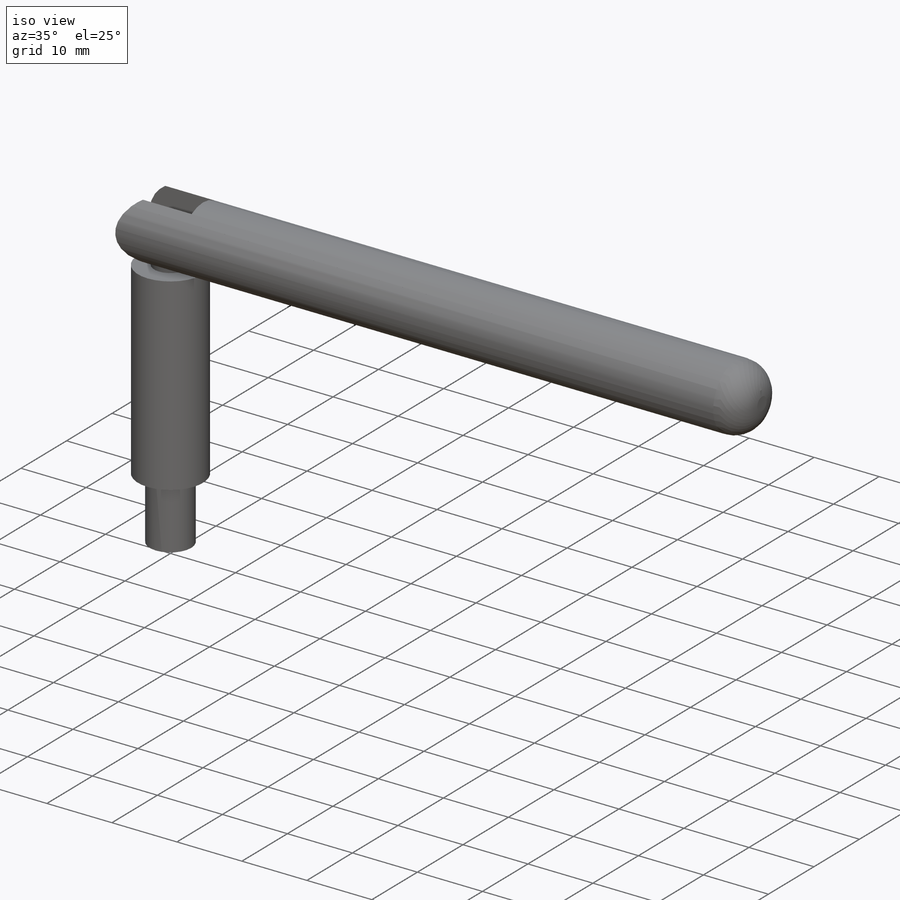
[diagram: iso view]
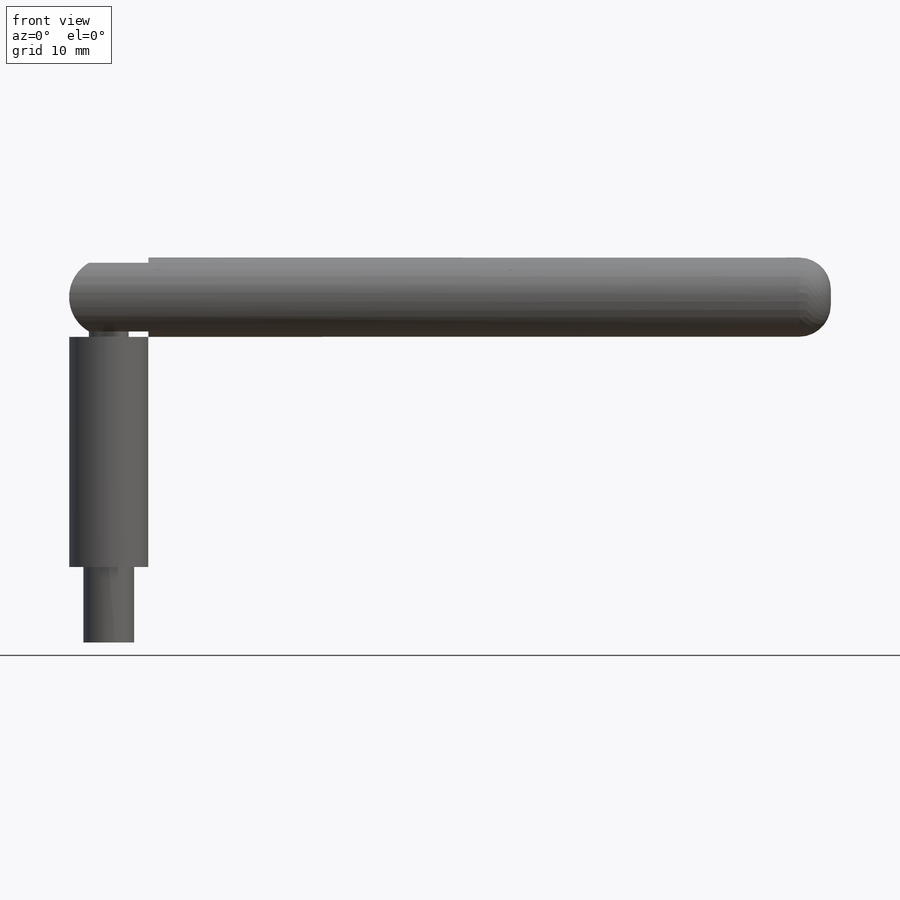
[diagram: front view]
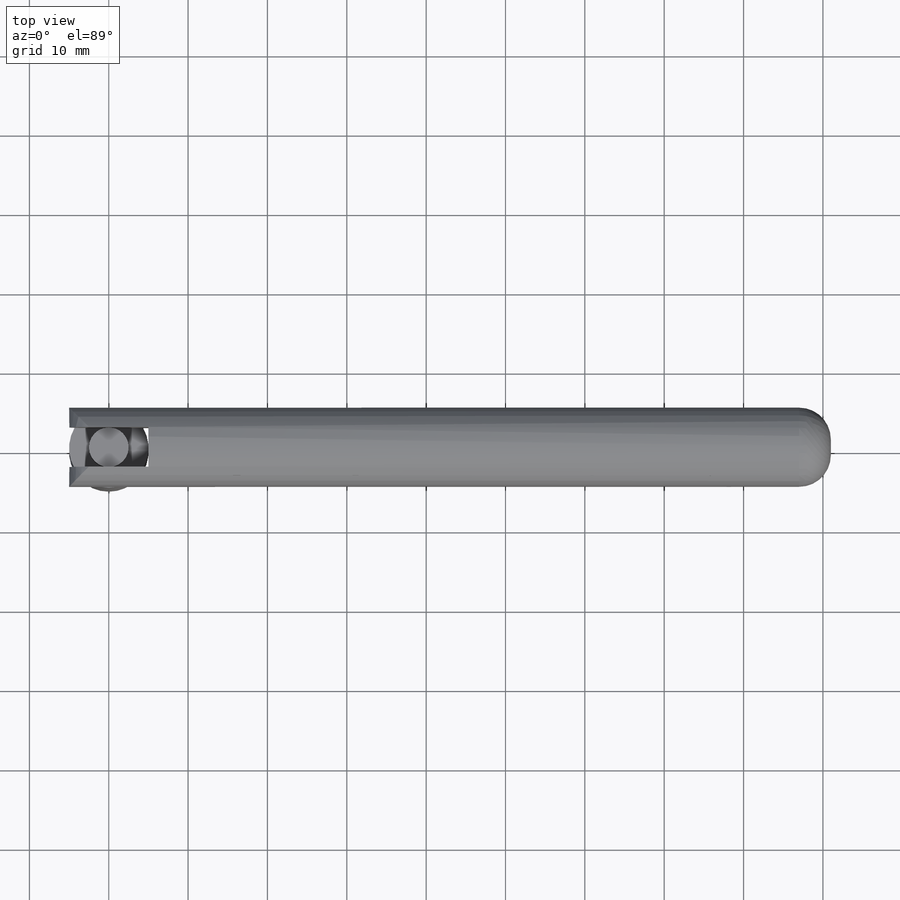
[diagram: top view]
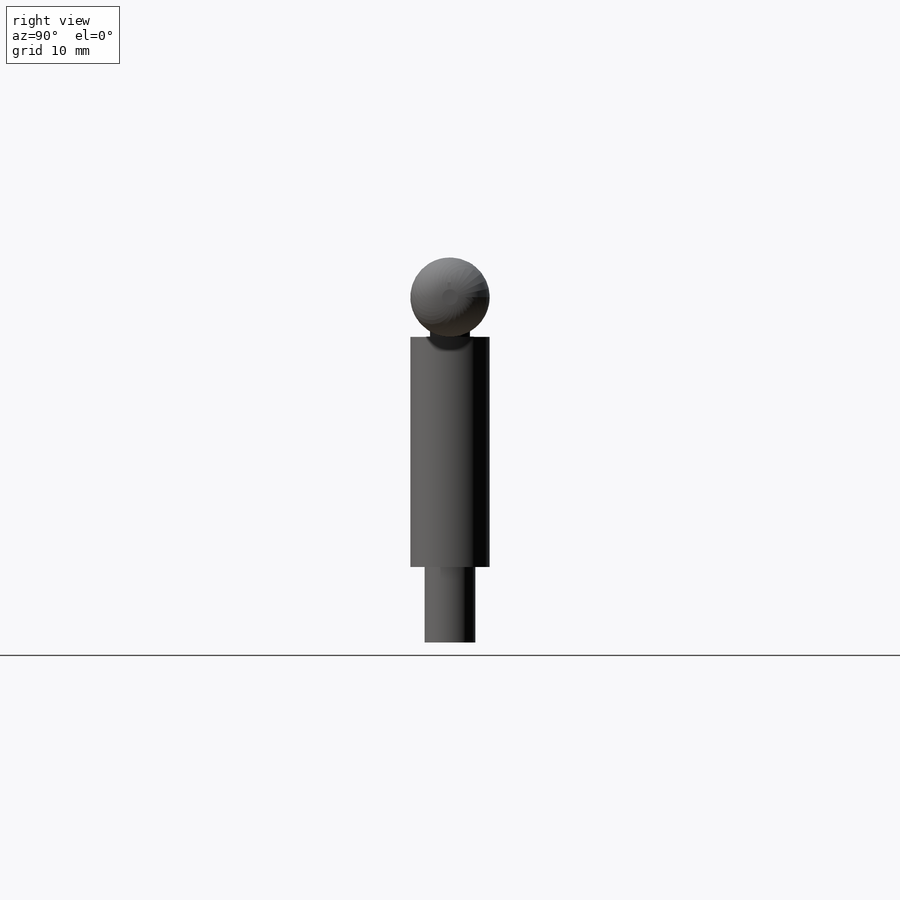
[diagram: right view]
SOLIDWORKS PART (.sldprt)
format: sldprt  version: not decoded by parser v0  size: 205,824 bytes
history: native  units: mm
features: sketch x6, extrude x4, cut_extrude x2, material x1, plane x1, fillet x1 (+11 scaffold rows collapsed)
feature tree (26):
  scaffold x11  (default folders/planes/origin — collapsed)
  material  "CA"
  sketch  "Sketch1"  dims[D1=10.0mm]
  extrude  "Boss-Extrude1"  Depth=29mm
  sketch  "Sketch2"  dims[D1=5.0mm]
  extrude  "Boss-Extrude2"  Depth=5mm
  sketch  "Sketch4"  dims[D1=6.4mm]
  extrude  "Boss-Extrude3"  Depth=9.525mm
  plane  "Plane1"  Offset=5mm
  sketch  "Sketch5"  dims[D1=10.0mm]
  extrude  "Boss-Extrude4"  Depth=86mm
  fillet  "Fillet1"  Radius=4mm
  sketch  "Sketch8"  dims[D1=5.0mm D2=10.0mm D3=2.5mm]
  cut_extrude  "Cut-Extrude2"  [1 undecoded]
  sketch  "Sketch9"  dims[D1=5.0mm]
  cut_extrude  "Cut-Extrude3"  [1 undecoded]
decode coverage: 11 of 13 modeling features carry decoded parameters
note: 2 parameter values undecoded
note: suppression state not decoded; provenance and decode notes live in map.json
